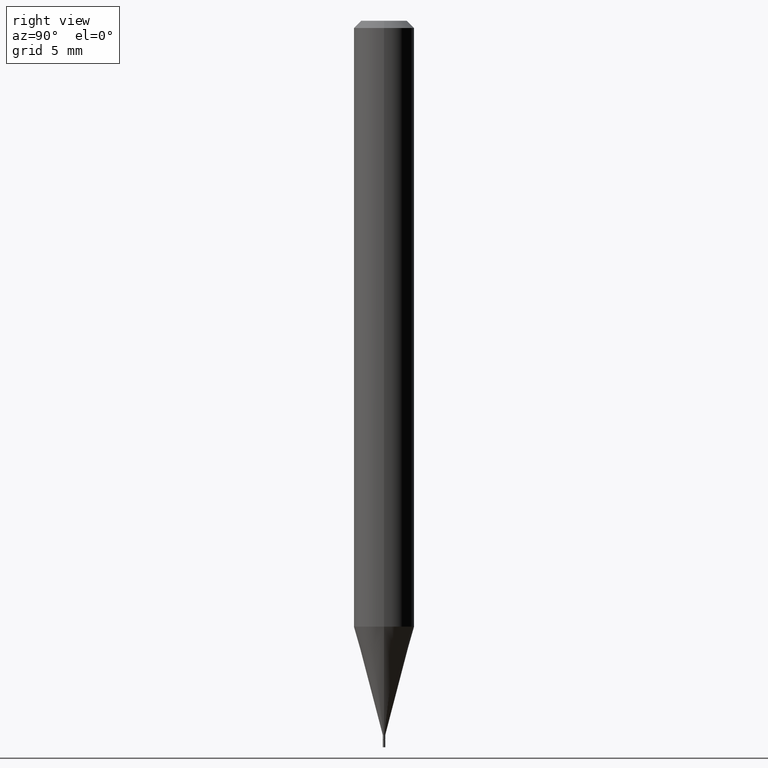
[diagram: clean part render]
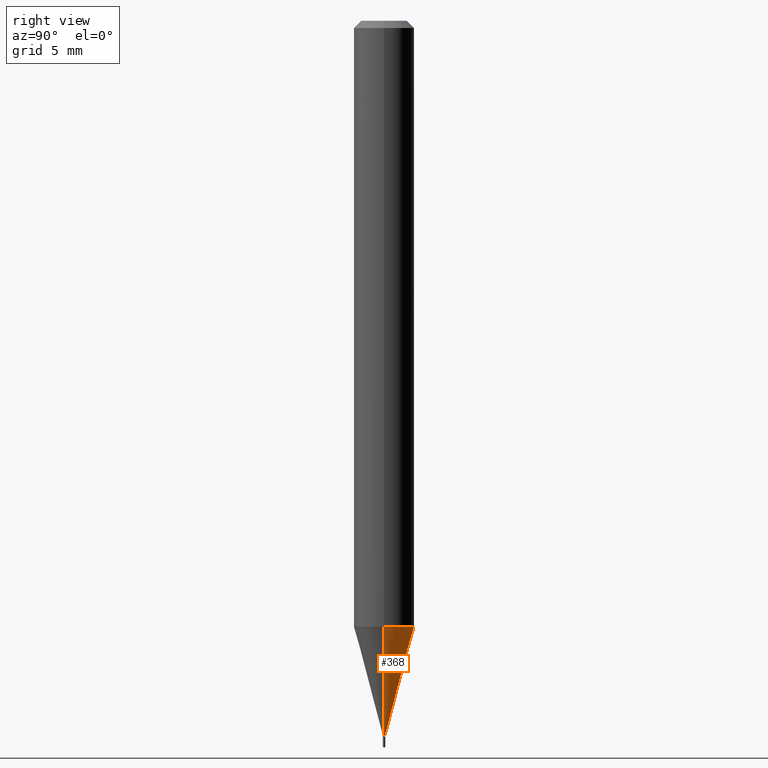
[diagram: same view with one face highlighted and labeled with its STEP entity id]
A machine part, right view. The second image highlights one B-rep face of the part: STEP entity #368.
In plain terms, the highlighted conical surface has half-angle 15 deg.
Its self-contained STEP definition (entity closure, byte-faithful):
#9 = VECTOR ( 'NONE', #66, 39.37007874015748854 ) ;
#20 = CARTESIAN_POINT ( 'NONE',  ( 0.002499999999999921989, -5.167392381487857245E-15, -1.475000000000000533 ) ) ;
#26 = EDGE_LOOP ( 'NONE', ( #305, #377, #333, #170 ) ) ;
#40 = DIRECTION ( 'NONE',  ( 1.000000000000000000, -6.982962677686270655E-15, 0.000000000000000000 ) ) ;
#56 = CARTESIAN_POINT ( 'NONE',  ( 3.607066489123077713E-29, -5.149934974793642209E-15, -1.475000000000000533 ) ) ;
#66 = DIRECTION ( 'NONE',  ( -0.2588190451025211281, 5.211531920934547886E-15, 0.9659258262890679791 ) ) ;
#68 = CIRCLE ( 'NONE', #332, 0.002499999999999921989 ) ;
#87 = VERTEX_POINT ( 'NONE', #225 ) ;
#104 = DIRECTION ( 'NONE',  ( 1.000000000000000000, -6.982962677686356641E-15, 0.000000000000000000 ) ) ;
#107 = CONICAL_SURFACE ( 'NONE', #345, 0.002499999999999921989, 0.2617993877991498519 ) ;
#122 = DIRECTION ( 'NONE',  ( -2.445468806185136597E-29, 3.491481338843145583E-15, 1.000000000000000000 ) ) ;
#134 = VERTEX_POINT ( 'NONE', #463 ) ;
#168 = EDGE_CURVE ( 'NONE', #134, #87, #428, .T. ) ;
#170 = ORIENTED_EDGE ( 'NONE', *, *, #410, .F. ) ;
#171 = CARTESIAN_POINT ( 'NONE',  ( 0.002499999999999921989, -5.167392381487857245E-15, -1.475000000000000533 ) ) ;
#173 = CARTESIAN_POINT ( 'NONE',  ( -0.002499999999999921989, -5.132171406399640083E-15, -1.475000000000000533 ) ) ;
#181 = VECTOR ( 'NONE', #421, 39.37007874015748854 ) ;
#225 = CARTESIAN_POINT ( 'NONE',  ( -0.06250000000000000000, -3.924022619929106385E-15, -1.251076951545867955 ) ) ;
#229 = AXIS2_PLACEMENT_3D ( 'NONE', #254, #357, #40 ) ;
#241 = CARTESIAN_POINT ( 'NONE',  ( 3.607066489123077713E-29, -5.149934974793642209E-15, -1.475000000000000533 ) ) ;
#254 = CARTESIAN_POINT ( 'NONE',  ( 3.059469659142613603E-29, -4.368111829779168212E-15, -1.251076951545867955 ) ) ;
#300 = EDGE_CURVE ( 'NONE', #362, #438, #68, .T. ) ;
#305 = ORIENTED_EDGE ( 'NONE', *, *, #300, .T. ) ;
#332 = AXIS2_PLACEMENT_3D ( 'NONE', #56, #122, #342 ) ;
#333 = ORIENTED_EDGE ( 'NONE', *, *, #168, .F. ) ;
#342 = DIRECTION ( 'NONE',  ( 1.000000000000000000, -6.982962677686356641E-15, 0.000000000000000000 ) ) ;
#345 = AXIS2_PLACEMENT_3D ( 'NONE', #241, #457, #104 ) ;
#357 = DIRECTION ( 'NONE',  ( -2.445468806185136597E-29, 3.491481338843145583E-15, 1.000000000000000000 ) ) ;
#362 = VERTEX_POINT ( 'NONE', #20 ) ;
#368 = ADVANCED_FACE ( 'NONE', ( #419 ), #107, .T. ) ;
#377 = ORIENTED_EDGE ( 'NONE', *, *, #458, .T. ) ;
#387 = LINE ( 'NONE', #173, #9 ) ;
#410 = EDGE_CURVE ( 'NONE', #362, #134, #447, .T. ) ;
#419 = FACE_OUTER_BOUND ( 'NONE', #26, .T. ) ;
#421 = DIRECTION ( 'NONE',  ( 0.2588190451025211281, 1.565188264969622954E-15, 0.9659258262890679791 ) ) ;
#428 = CIRCLE ( 'NONE', #229, 0.06250000000000000000 ) ;
#438 = VERTEX_POINT ( 'NONE', #455 ) ;
#447 = LINE ( 'NONE', #171, #181 ) ;
#455 = CARTESIAN_POINT ( 'NONE',  ( -0.002499999999999921989, -4.528097013164372840E-15, -1.475000000000000533 ) ) ;
#457 = DIRECTION ( 'NONE',  ( -2.445468806185136597E-29, 3.491481338843145583E-15, 1.000000000000000000 ) ) ;
#458 = EDGE_CURVE ( 'NONE', #438, #87, #387, .T. ) ;
#463 = CARTESIAN_POINT ( 'NONE',  ( 0.06250000000000000000, -4.804546997134559881E-15, -1.251076951545867955 ) ) ;